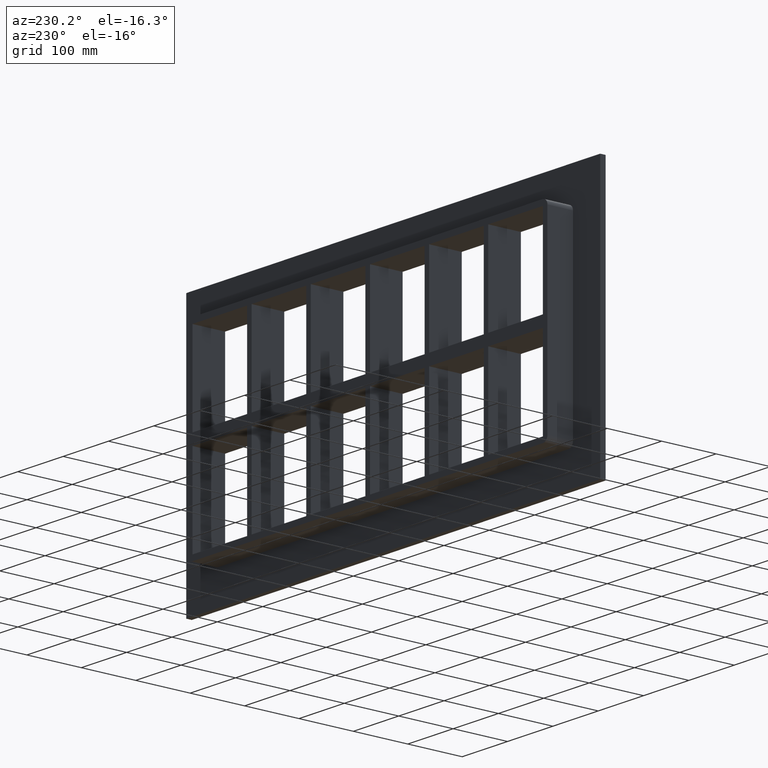
[diagram: clean part render]
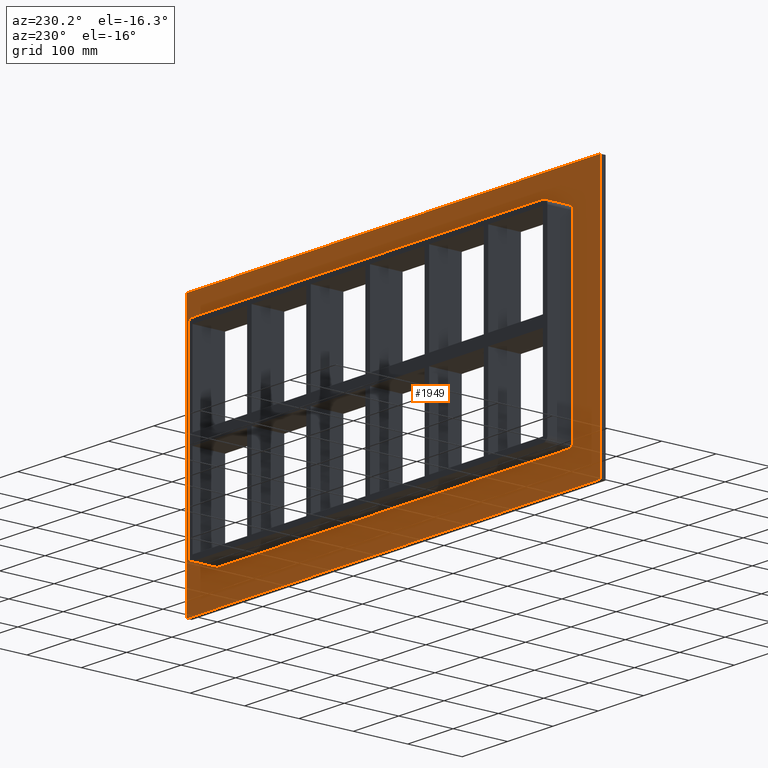
[diagram: same view with one face highlighted and labeled with its STEP entity id]
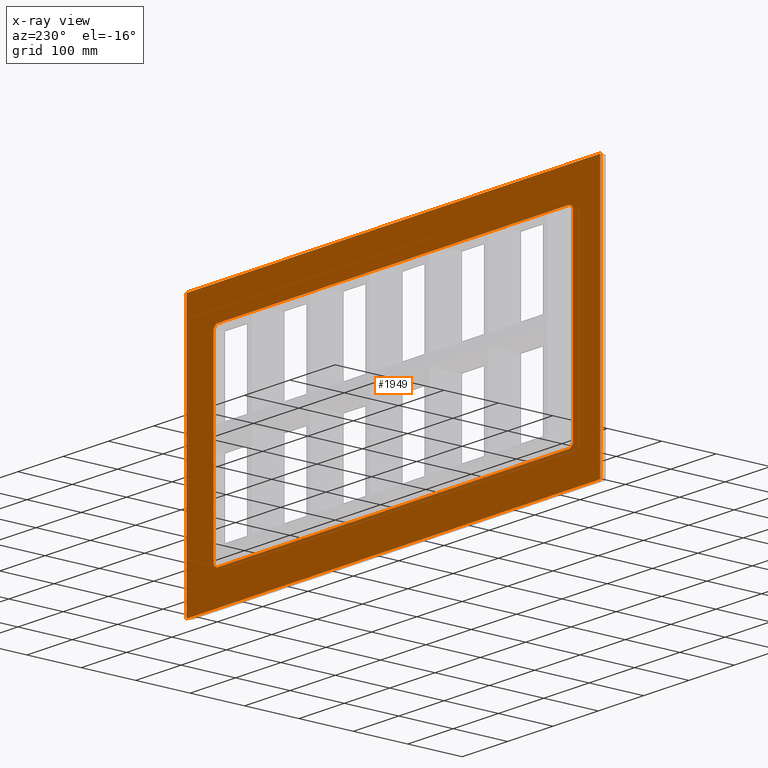
[diagram: x-ray of the same camera — body ghosted, the highlighted face saturated]
A machine part, auxiliary view. The second image highlights one B-rep face of the part: STEP entity #1949.
The next image is the same camera in x-ray: the body ghosted, the highlighted face saturated — about 0% of this face is hidden behind the body in this view.
In plain terms, the highlighted planar face has unit normal (0, 1, 0).
Its self-contained STEP definition (entity closure, byte-faithful):
#1840=CARTESIAN_POINT('',(0.0,10.0,0.0));
#1841=DIRECTION('',(0.0,1.0,0.0));
#1842=DIRECTION('',(0.0,0.0,1.0));
#1843=AXIS2_PLACEMENT_3D('',#1840,#1841,#1842);
#1844=PLANE('',#1843);
#1845=CARTESIAN_POINT('',(-456.50000000000006,10.0,239.50000000000003));
#1846=VERTEX_POINT('',#1845);
#1847=CARTESIAN_POINT('',(456.50000000000006,10.0,239.50000000000003));
#1848=VERTEX_POINT('',#1847);
#1849=CARTESIAN_POINT('',(-456.50000000000006,10.0,239.50000000000003));
#1850=DIRECTION('',(1.0,0.0,0.0));
#1851=VECTOR('',#1850,913.00000000000011);
#1852=LINE('',#1849,#1851);
#1853=EDGE_CURVE('',#1846,#1848,#1852,.T.);
#1854=ORIENTED_EDGE('',*,*,#1853,.T.);
#1855=CARTESIAN_POINT('',(456.50000000000006,10.0,-239.50000000000003));
#1856=VERTEX_POINT('',#1855);
#1857=CARTESIAN_POINT('',(456.50000000000006,10.0,239.50000000000003));
#1858=DIRECTION('',(0.0,0.0,-1.0));
#1859=VECTOR('',#1858,479.00000000000006);
#1860=LINE('',#1857,#1859);
#1861=EDGE_CURVE('',#1848,#1856,#1860,.T.);
#1862=ORIENTED_EDGE('',*,*,#1861,.T.);
#1863=CARTESIAN_POINT('',(-456.50000000000006,10.0,-239.50000000000003));
#1864=VERTEX_POINT('',#1863);
#1865=CARTESIAN_POINT('',(456.50000000000006,10.0,-239.50000000000003));
#1866=DIRECTION('',(-1.0,0.0,0.0));
#1867=VECTOR('',#1866,913.00000000000011);
#1868=LINE('',#1865,#1867);
#1869=EDGE_CURVE('',#1856,#1864,#1868,.T.);
#1870=ORIENTED_EDGE('',*,*,#1869,.T.);
#1871=CARTESIAN_POINT('',(-456.50000000000006,10.0,-239.50000000000003));
#1872=DIRECTION('',(0.0,0.0,1.0));
#1873=VECTOR('',#1872,479.00000000000006);
#1874=LINE('',#1871,#1873);
#1875=EDGE_CURVE('',#1864,#1846,#1874,.T.);
#1876=ORIENTED_EDGE('',*,*,#1875,.T.);
#1877=EDGE_LOOP('',(#1854,#1862,#1870,#1876));
#1878=FACE_OUTER_BOUND('',#1877,.T.);
#1879=CARTESIAN_POINT('',(-386.50000000000006,10.0,-179.50000000000003));
#1880=VERTEX_POINT('',#1879);
#1881=CARTESIAN_POINT('',(-396.50000000000006,10.0,-169.50000000000003));
#1882=VERTEX_POINT('',#1881);
#1883=CARTESIAN_POINT('',(-386.50000000000006,10.0,-169.50000000000003));
#1884=DIRECTION('',(0.0,1.0,0.0));
#1885=DIRECTION('',(-0.707106781186547,0.0,-0.707106781186547));
#1886=AXIS2_PLACEMENT_3D('',#1883,#1884,#1885);
#1887=CIRCLE('',#1886,9.999999999999998);
#1888=EDGE_CURVE('',#1880,#1882,#1887,.T.);
#1889=ORIENTED_EDGE('',*,*,#1888,.F.);
#1890=CARTESIAN_POINT('',(386.50000000000006,10.0,-179.50000000000003));
#1891=VERTEX_POINT('',#1890);
#1892=CARTESIAN_POINT('',(386.50000000000006,10.0,-179.50000000000003));
#1893=DIRECTION('',(-1.0,0.0,0.0));
#1894=VECTOR('',#1893,773.00000000000023);
#1895=LINE('',#1892,#1894);
#1896=EDGE_CURVE('',#1891,#1880,#1895,.T.);
#1897=ORIENTED_EDGE('',*,*,#1896,.F.);
#1898=CARTESIAN_POINT('',(396.50000000000006,10.0,-169.50000000000003));
#1899=VERTEX_POINT('',#1898);
#1900=CARTESIAN_POINT('',(386.50000000000006,10.0,-169.50000000000003));
#1901=DIRECTION('',(0.0,1.0,0.0));
#1902=DIRECTION('',(0.707106781186547,0.0,-0.707106781186547));
#1903=AXIS2_PLACEMENT_3D('',#1900,#1901,#1902);
#1904=CIRCLE('',#1903,9.999999999999998);
#1905=EDGE_CURVE('',#1899,#1891,#1904,.T.);
#1906=ORIENTED_EDGE('',*,*,#1905,.F.);
#1907=CARTESIAN_POINT('',(396.50000000000006,10.0,169.50000000000003));
#1908=VERTEX_POINT('',#1907);
#1909=CARTESIAN_POINT('',(396.50000000000006,10.0,169.50000000000003));
#1910=DIRECTION('',(0.0,0.0,-1.0));
#1911=VECTOR('',#1910,339.00000000000011);
#1912=LINE('',#1909,#1911);
#1913=EDGE_CURVE('',#1908,#1899,#1912,.T.);
#1914=ORIENTED_EDGE('',*,*,#1913,.F.);
#1915=CARTESIAN_POINT('',(386.50000000000006,10.0,179.50000000000003));
#1916=VERTEX_POINT('',#1915);
#1917=CARTESIAN_POINT('',(386.50000000000006,10.0,169.50000000000003));
#1918=DIRECTION('',(0.0,1.0,0.0));
#1919=DIRECTION('',(0.707106781186547,0.0,0.707106781186547));
#1920=AXIS2_PLACEMENT_3D('',#1917,#1918,#1919);
#1921=CIRCLE('',#1920,9.999999999999998);
#1922=EDGE_CURVE('',#1916,#1908,#1921,.T.);
#1923=ORIENTED_EDGE('',*,*,#1922,.F.);
#1924=CARTESIAN_POINT('',(-386.50000000000006,10.0,179.50000000000003));
#1925=VERTEX_POINT('',#1924);
#1926=CARTESIAN_POINT('',(-386.50000000000006,10.0,179.50000000000003));
#1927=DIRECTION('',(1.0,0.0,0.0));
#1928=VECTOR('',#1927,773.00000000000023);
#1929=LINE('',#1926,#1928);
#1930=EDGE_CURVE('',#1925,#1916,#1929,.T.);
#1931=ORIENTED_EDGE('',*,*,#1930,.F.);
#1932=CARTESIAN_POINT('',(-396.50000000000006,10.0,169.50000000000003));
#1933=VERTEX_POINT('',#1932);
#1934=CARTESIAN_POINT('',(-386.50000000000006,10.0,169.50000000000003));
#1935=DIRECTION('',(0.0,1.0,0.0));
#1936=DIRECTION('',(-0.707106781186547,0.0,0.707106781186547));
#1937=AXIS2_PLACEMENT_3D('',#1934,#1935,#1936);
#1938=CIRCLE('',#1937,9.999999999999998);
#1939=EDGE_CURVE('',#1933,#1925,#1938,.T.);
#1940=ORIENTED_EDGE('',*,*,#1939,.F.);
#1941=CARTESIAN_POINT('',(-396.50000000000006,10.0,-169.50000000000003));
#1942=DIRECTION('',(0.0,0.0,1.0));
#1943=VECTOR('',#1942,339.00000000000011);
#1944=LINE('',#1941,#1943);
#1945=EDGE_CURVE('',#1882,#1933,#1944,.T.);
#1946=ORIENTED_EDGE('',*,*,#1945,.F.);
#1947=EDGE_LOOP('',(#1889,#1897,#1906,#1914,#1923,#1931,#1940,#1946));
#1948=FACE_BOUND('',#1947,.T.);
#1949=ADVANCED_FACE('',(#1878,#1948),#1844,.T.);